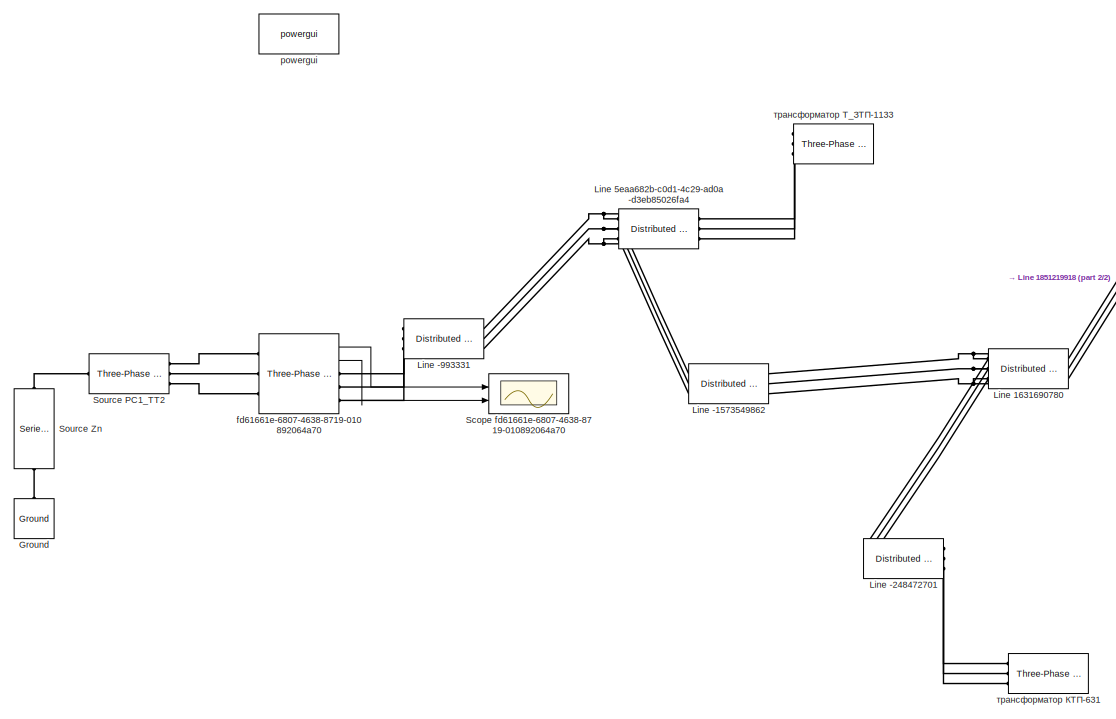
[diagram: root canvas - part 1/2, left side, full height]
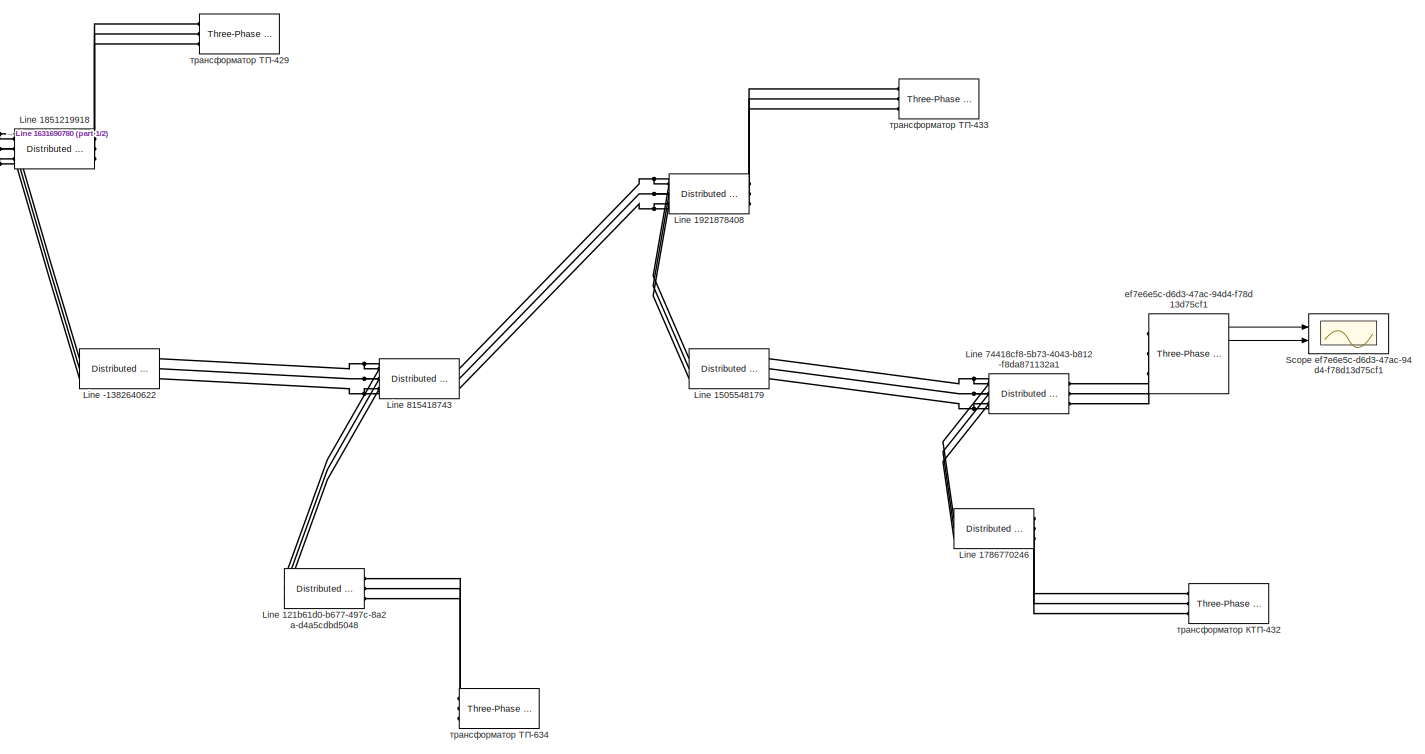
[diagram: root canvas - part 2/2, right side, full height]
MODEL slx_dfac7493e74a
KIND model
CONFIG AbsTol = auto
CONFIG EnableMultiTasking = off
CONFIG FixedStep = 0.2
CONFIG MaxStep = auto
CONFIG MinStep = auto
CONFIG RelTol = 1e-3
CONFIG SampleTimeConstraint = Unconstrained
CONFIG SolverName = FixedStepAuto
CONFIG StartTime = 0
CONFIG StopTime = 0.2
BLOCK [Reference] Ground  REF=spsGroundLib/Ground
  NameLocation = right
  Ports = [0, 0, 0, 0, 0, 1]
  SourceBlock = spsGroundLib/Ground
  SourceProductBaseCode = PS
  SourceType = Ground
BLOCK [Reference] Line -1382640622  REF=spsDistributedParametersLineLib/Distributed Parameters Line
  Description = Line connected to devices: [Опора-4/1_Л-8-10кВ_Воробьево\nОпора-2/44_Л-8-10кВ_Воробьево, Опора-2/67_Л-8-10кВ_Воробьево]
  Ports = [0, 0, 0, 0, 0, 3, 3]
  SourceBlock = spsDistributedParametersLineLib/Distributed Parameters Line
  SourceProductBaseCode = PS
  SourceType = Distributed Parameters Line
BLOCK [Reference] Line -1573549862  REF=spsDistributedParametersLineLib/Distributed Parameters Line
  Description = Line connected to devices: [СШ ЗТП-1133, Опора-3/1_Л-8-10кВ_Воробьево\nОпора-2/16_Л-8-10кВ_Воробьево]
  Ports = [0, 0, 0, 0, 0, 3, 3]
  SourceBlock = spsDistributedParametersLineLib/Distributed Parameters Line
  SourceProductBaseCode = PS
  SourceType = Distributed Parameters Line
BLOCK [Reference] Line -248472701  REF=spsDistributedParametersLineLib/Distributed Parameters Line
  Description = Line connected to devices: [Опора-3/1_Л-8-10кВ_Воробьево\nОпора-2/16_Л-8-10кВ_Воробьево, трансформатор КТП-631]
  Ports = [0, 0, 0, 0, 0, 3, 3]
  SourceBlock = spsDistributedParametersLineLib/Distributed Parameters Line
  SourceProductBaseCode = PS
  SourceType = Distributed Parameters Line
BLOCK [Reference] Line -993331  REF=spsDistributedParametersLineLib/Distributed Parameters Line
  Description = Line connected to devices: [ВВ Ячейка_Л-8-10кВ_Воробьево, СШ ЗТП-1133]
  Ports = [0, 0, 0, 0, 0, 3, 3]
  SourceBlock = spsDistributedParametersLineLib/Distributed Parameters Line
  SourceProductBaseCode = PS
  SourceType = Distributed Parameters Line
BLOCK [Reference] Line 121b61d0-b677-497c-8a2a-d4a5cdbd5048  REF=spsDistributedParametersLineLib/Distributed Parameters Line
  Description = Line connected to devices: [Опора-2/67_Л-8-10кВ_Воробьево, трансформатор ТП-634]
  Ports = [0, 0, 0, 0, 0, 3, 3]
  SourceBlock = spsDistributedParametersLineLib/Distributed Parameters Line
  SourceProductBaseCode = PS
  SourceType = Distributed Parameters Line
BLOCK [Reference] Line 1505548179  REF=spsDistributedParametersLineLib/Distributed Parameters Line
  Description = Line connected to devices: [Опора-5/11_Л-8-10кВ_Воробьево, Опора-5/22_Л-8-10кВ_Воробьево\nОпора-6/1_Л-8-10кВ_Воробьево]
  Ports = [0, 0, 0, 0, 0, 3, 3]
  SourceBlock = spsDistributedParametersLineLib/Distributed Parameters Line
  SourceProductBaseCode = PS
  SourceType = Distributed Parameters Line
BLOCK [Reference] Line 1631690780  REF=spsDistributedParametersLineLib/Distributed Parameters Line
  Description = Line connected to devices: [Опора-3/1_Л-8-10кВ_Воробьево\nОпора-2/16_Л-8-10кВ_Воробьево, Опора-4/1_Л-8-10кВ_Воробьево\nОпора-2/44_Л-8-10кВ_Воробьево]
  Ports = [0, 0, 0, 0, 0, 3, 3]
  SourceBlock = spsDistributedParametersLineLib/Distributed Parameters Line
  SourceProductBaseCode = PS
  SourceType = Distributed Parameters Line
BLOCK [Reference] Line 1786770246  REF=spsDistributedParametersLineLib/Distributed Parameters Line
  Description = Line connected to devices: [Опора-5/22_Л-8-10кВ_Воробьево\nОпора-6/1_Л-8-10кВ_Воробьево, трансформатор КТП-432]
  Ports = [0, 0, 0, 0, 0, 3, 3]
  SourceBlock = spsDistributedParametersLineLib/Distributed Parameters Line
  SourceProductBaseCode = PS
  SourceType = Distributed Parameters Line
BLOCK [Reference] Line 1851219918  REF=spsDistributedParametersLineLib/Distributed Parameters Line
  Description = Line connected to devices: [Опора-4/1_Л-8-10кВ_Воробьево\nОпора-2/44_Л-8-10кВ_Воробьево, трансформатор ТП-429]
  Ports = [0, 0, 0, 0, 0, 3, 3]
  SourceBlock = spsDistributedParametersLineLib/Distributed Parameters Line
  SourceProductBaseCode = PS
  SourceType = Distributed Parameters Line
BLOCK [Reference] Line 1921878408  REF=spsDistributedParametersLineLib/Distributed Parameters Line
  Description = Line connected to devices: [Опора-5/11_Л-8-10кВ_Воробьево, трансформатор ТП-433]
  Ports = [0, 0, 0, 0, 0, 3, 3]
  SourceBlock = spsDistributedParametersLineLib/Distributed Parameters Line
  SourceProductBaseCode = PS
  SourceType = Distributed Parameters Line
BLOCK [Reference] Line 5eaa682b-c0d1-4c29-ad0a-d3eb85026fa4  REF=spsDistributedParametersLineLib/Distributed Parameters Line
  Description = Line connected to devices: [СШ ЗТП-1133, трансформатор Т_ЗТП-1133]
  Ports = [0, 0, 0, 0, 0, 3, 3]
  SourceBlock = spsDistributedParametersLineLib/Distributed Parameters Line
  SourceProductBaseCode = PS
  SourceType = Distributed Parameters Line
BLOCK [Reference] Line 74418cf8-5b73-4043-b812-f8da871132a1  REF=spsDistributedParametersLineLib/Distributed Parameters Line
  Description = Line connected to devices: [Опора-5/22_Л-8-10кВ_Воробьево\nОпора-6/1_Л-8-10кВ_Воробьево, ВВ РВА-9-10кВ]
  Ports = [0, 0, 0, 0, 0, 3, 3]
  SourceBlock = spsDistributedParametersLineLib/Distributed Parameters Line
  SourceProductBaseCode = PS
  SourceType = Distributed Parameters Line
BLOCK [Reference] Line 815418743  REF=spsDistributedParametersLineLib/Distributed Parameters Line
  Description = Line connected to devices: [Опора-2/67_Л-8-10кВ_Воробьево, Опора-5/11_Л-8-10кВ_Воробьево]
  Ports = [0, 0, 0, 0, 0, 3, 3]
  SourceBlock = spsDistributedParametersLineLib/Distributed Parameters Line
  SourceProductBaseCode = PS
  SourceType = Distributed Parameters Line
BLOCK [Scope] Scope ef7e6e5c-d6d3-47ac-94d4-f78d13d75cf1
  Floating = off
  NumInputPorts = 2
  Ports = [2]
  ScopeSpecificationString = Simulink.scopes.TimeScopeBlockCfg('CurrentConfiguration', extmgr.ConfigurationSet(extmgr.Configuration('Core','General UI',true),extmgr.Configuration('Core','Source UI',true),extmgr.Configuration('Sources','WiredSimulink',true,'DataLogging',true,'DataLoggingSaveFormat','StructureWithTime','DataLoggingVariableName','ScopeData18'),extmgr.Configuration('Visuals','Time Domain',true,'SerializedDisplays...<+1381ch>
BLOCK [Scope] Scope fd61661e-6807-4638-8719-010892064a70
  Floating = off
  NumInputPorts = 2
  Ports = [2]
  ScopeSpecificationString = Simulink.scopes.TimeScopeBlockCfg('CurrentConfiguration', extmgr.ConfigurationSet(extmgr.Configuration('Core','General UI',true),extmgr.Configuration('Core','Source UI',true),extmgr.Configuration('Sources','WiredSimulink',true,'DataLogging',true,'DataLoggingSaveFormat','StructureWithTime','DataLoggingVariableName','ScopeData3'),extmgr.Configuration('Visuals','Time Domain',true,'SerializedDisplays'...<+2120ch>
BLOCK [Reference] Source PC1_TT2  REF=spsThreePhaseSourceLib/Three-Phase Source
  Ports = [0, 0, 0, 0, 0, 1, 3]
  SourceBlock = spsThreePhaseSourceLib/Three-Phase Source
  SourceProductBaseCode = PS
  SourceType = Three-Phase Source
BLOCK [Reference] Source Zn  REF=spsSeriesRLCBranchLib/Series RLC Branch
  NameLocation = right
  Ports = [0, 0, 0, 0, 0, 1, 1]
  SourceBlock = spsSeriesRLCBranchLib/Series RLC Branch
  SourceProductBaseCode = PS
  SourceType = Series RLC Branch
BLOCK [Reference] ef7e6e5c-d6d3-47ac-94d4-f78d13d75cf1  REF=spsThreePhaseVIMeasurementLib/Three-Phase
V-I Measurement
  Ports = [0, 2, 0, 0, 0, 3, 3]
  SourceBlock = spsThreePhaseVIMeasurementLib/Three-Phase\nV-I Measurement
  SourceProductBaseCode = PS
  SourceType = Three-Phase VI Measurement
BLOCK [Reference] fd61661e-6807-4638-8719-010892064a70  REF=spsThreePhaseVIMeasurementLib/Three-Phase
V-I Measurement
  Ports = [0, 2, 0, 0, 0, 3, 3]
  SourceBlock = spsThreePhaseVIMeasurementLib/Three-Phase\nV-I Measurement
  SourceProductBaseCode = PS
  SourceType = Three-Phase VI Measurement
BLOCK [Reference] powergui  REF=spspowerguiLib/powergui
  Ports = []
  Priority = 1
  SourceBlock = spspowerguiLib/powergui
  SourceProductBaseCode = PS
  SourceType = PSB option menu block
BLOCK [Reference] трансформатор КТП-432  REF=spsThreePhaseSeriesRLCLoadLib/Three-Phase
Series RLC Load
  AttributesFormatString = \n
  Description = Device type: [LOAD], in DispatcherName: [трансформатор КТП-432]
  NameLocation = top
  Ports = [0, 0, 0, 0, 0, 3]
  SourceBlock = spsThreePhaseSeriesRLCLoadLib/Three-Phase\nSeries RLC Load
  SourceProductBaseCode = PS
  SourceType = Three-Phase Series RLC Load
BLOCK [Reference] трансформатор КТП-631  REF=spsThreePhaseSeriesRLCLoadLib/Three-Phase
Series RLC Load
  AttributesFormatString = \n
  Description = Device type: [LOAD], in DispatcherName: [трансформатор КТП-631]
  NameLocation = top
  Ports = [0, 0, 0, 0, 0, 3]
  SourceBlock = spsThreePhaseSeriesRLCLoadLib/Three-Phase\nSeries RLC Load
  SourceProductBaseCode = PS
  SourceType = Three-Phase Series RLC Load
BLOCK [Reference] трансформатор Т_ЗТП-1133  REF=spsThreePhaseSeriesRLCLoadLib/Three-Phase
Series RLC Load
  AttributesFormatString = \n
  Description = Device type: [LOAD], in DispatcherName: [трансформатор Т_ЗТП-1133]
  NameLocation = top
  Ports = [0, 0, 0, 0, 0, 3]
  SourceBlock = spsThreePhaseSeriesRLCLoadLib/Three-Phase\nSeries RLC Load
  SourceProductBaseCode = PS
  SourceType = Three-Phase Series RLC Load
BLOCK [Reference] трансформатор ТП-429  REF=spsThreePhaseSeriesRLCLoadLib/Three-Phase
Series RLC Load
  AttributesFormatString = \n
  Description = Device type: [LOAD], in DispatcherName: [трансформатор ТП-429]
  NameLocation = top
  Ports = [0, 0, 0, 0, 0, 3]
  SourceBlock = spsThreePhaseSeriesRLCLoadLib/Three-Phase\nSeries RLC Load
  SourceProductBaseCode = PS
  SourceType = Three-Phase Series RLC Load
BLOCK [Reference] трансформатор ТП-433  REF=spsThreePhaseSeriesRLCLoadLib/Three-Phase
Series RLC Load
  AttributesFormatString = \n
  Description = Device type: [LOAD], in DispatcherName: [трансформатор ТП-433]
  NameLocation = top
  Ports = [0, 0, 0, 0, 0, 3]
  SourceBlock = spsThreePhaseSeriesRLCLoadLib/Three-Phase\nSeries RLC Load
  SourceProductBaseCode = PS
  SourceType = Three-Phase Series RLC Load
BLOCK [Reference] трансформатор ТП-634  REF=spsThreePhaseSeriesRLCLoadLib/Three-Phase
Series RLC Load
  AttributesFormatString = \n
  Description = Device type: [LOAD], in DispatcherName: [трансформатор ТП-634]
  NameLocation = top
  Ports = [0, 0, 0, 0, 0, 3]
  SourceBlock = spsThreePhaseSeriesRLCLoadLib/Three-Phase\nSeries RLC Load
  SourceProductBaseCode = PS
  SourceType = Three-Phase Series RLC Load
LINE ef7e6e5c-d6d3-47ac-94d4-f78d13d75cf1:1 -> Scope ef7e6e5c-d6d3-47ac-94d4-f78d13d75cf1:1
LINE ef7e6e5c-d6d3-47ac-94d4-f78d13d75cf1:2 -> Scope ef7e6e5c-d6d3-47ac-94d4-f78d13d75cf1:2
LINE fd61661e-6807-4638-8719-010892064a70:1 -> Scope fd61661e-6807-4638-8719-010892064a70:1
LINE fd61661e-6807-4638-8719-010892064a70:2 -> Scope fd61661e-6807-4638-8719-010892064a70:2
PLINE Ground:LConn1 -- Source Zn:LConn1
PNET net1: Line -1382640622:LConn1 -- Line 1631690780:RConn1 -- Line 1851219918:LConn1
PNET net2: Line -1382640622:LConn2 -- Line 1631690780:RConn2 -- Line 1851219918:LConn2
PNET net3: Line -1382640622:LConn3 -- Line 1631690780:RConn3 -- Line 1851219918:LConn3
PNET net4: Line -1382640622:RConn1 -- Line 121b61d0-b677-497c-8a2a-d4a5cdbd5048:LConn1 -- Line 815418743:LConn1
PNET net5: Line -1382640622:RConn2 -- Line 121b61d0-b677-497c-8a2a-d4a5cdbd5048:LConn2 -- Line 815418743:LConn2
PNET net6: Line -1382640622:RConn3 -- Line 121b61d0-b677-497c-8a2a-d4a5cdbd5048:LConn3 -- Line 815418743:LConn3
PNET net7: Line -1573549862:LConn1 -- Line -993331:RConn1 -- Line 5eaa682b-c0d1-4c29-ad0a-d3eb85026fa4:LConn1
PNET net8: Line -1573549862:LConn2 -- Line -993331:RConn2 -- Line 5eaa682b-c0d1-4c29-ad0a-d3eb85026fa4:LConn2
PNET net9: Line -1573549862:LConn3 -- Line -993331:RConn3 -- Line 5eaa682b-c0d1-4c29-ad0a-d3eb85026fa4:LConn3
PNET net10: Line -1573549862:RConn1 -- Line -248472701:LConn1 -- Line 1631690780:LConn1
PNET net11: Line -1573549862:RConn2 -- Line -248472701:LConn2 -- Line 1631690780:LConn2
PNET net12: Line -1573549862:RConn3 -- Line -248472701:LConn3 -- Line 1631690780:LConn3
PLINE Line -248472701:RConn1 -- трансформатор КТП-631:LConn1
PLINE Line -248472701:RConn2 -- трансформатор КТП-631:LConn2
PLINE Line -248472701:RConn3 -- трансформатор КТП-631:LConn3
PLINE Line -993331:LConn1 -- fd61661e-6807-4638-8719-010892064a70:RConn1
PLINE Line -993331:LConn2 -- fd61661e-6807-4638-8719-010892064a70:RConn2
PLINE Line -993331:LConn3 -- fd61661e-6807-4638-8719-010892064a70:RConn3
PLINE Line 121b61d0-b677-497c-8a2a-d4a5cdbd5048:RConn1 -- трансформатор ТП-634:LConn1
PLINE Line 121b61d0-b677-497c-8a2a-d4a5cdbd5048:RConn2 -- трансформатор ТП-634:LConn2
PLINE Line 121b61d0-b677-497c-8a2a-d4a5cdbd5048:RConn3 -- трансформатор ТП-634:LConn3
PNET net13: Line 1505548179:LConn1 -- Line 1921878408:LConn1 -- Line 815418743:RConn1
PNET net14: Line 1505548179:LConn2 -- Line 1921878408:LConn2 -- Line 815418743:RConn2
PNET net15: Line 1505548179:LConn3 -- Line 1921878408:LConn3 -- Line 815418743:RConn3
PNET net16: Line 1505548179:RConn1 -- Line 1786770246:LConn1 -- Line 74418cf8-5b73-4043-b812-f8da871132a1:LConn1
PNET net17: Line 1505548179:RConn2 -- Line 1786770246:LConn2 -- Line 74418cf8-5b73-4043-b812-f8da871132a1:LConn2
PNET net18: Line 1505548179:RConn3 -- Line 1786770246:LConn3 -- Line 74418cf8-5b73-4043-b812-f8da871132a1:LConn3
PLINE Line 1786770246:RConn1 -- трансформатор КТП-432:LConn1
PLINE Line 1786770246:RConn2 -- трансформатор КТП-432:LConn2
PLINE Line 1786770246:RConn3 -- трансформатор КТП-432:LConn3
PLINE Line 1851219918:RConn1 -- трансформатор ТП-429:LConn1
PLINE Line 1851219918:RConn2 -- трансформатор ТП-429:LConn2
PLINE Line 1851219918:RConn3 -- трансформатор ТП-429:LConn3
PLINE Line 1921878408:RConn1 -- трансформатор ТП-433:LConn1
PLINE Line 1921878408:RConn2 -- трансформатор ТП-433:LConn2
PLINE Line 1921878408:RConn3 -- трансформатор ТП-433:LConn3
PLINE Line 5eaa682b-c0d1-4c29-ad0a-d3eb85026fa4:RConn1 -- трансформатор Т_ЗТП-1133:LConn1
PLINE Line 5eaa682b-c0d1-4c29-ad0a-d3eb85026fa4:RConn2 -- трансформатор Т_ЗТП-1133:LConn2
PLINE Line 5eaa682b-c0d1-4c29-ad0a-d3eb85026fa4:RConn3 -- трансформатор Т_ЗТП-1133:LConn3
PLINE Line 74418cf8-5b73-4043-b812-f8da871132a1:RConn1 -- ef7e6e5c-d6d3-47ac-94d4-f78d13d75cf1:LConn1
PLINE Line 74418cf8-5b73-4043-b812-f8da871132a1:RConn2 -- ef7e6e5c-d6d3-47ac-94d4-f78d13d75cf1:LConn2
PLINE Line 74418cf8-5b73-4043-b812-f8da871132a1:RConn3 -- ef7e6e5c-d6d3-47ac-94d4-f78d13d75cf1:LConn3
PLINE Source PC1_TT2:LConn1 -- Source Zn:RConn1
PLINE Source PC1_TT2:RConn1 -- fd61661e-6807-4638-8719-010892064a70:LConn1
PLINE Source PC1_TT2:RConn2 -- fd61661e-6807-4638-8719-010892064a70:LConn2
PLINE Source PC1_TT2:RConn3 -- fd61661e-6807-4638-8719-010892064a70:LConn3
note: PNET lines group multi-terminal physical nets as a canonical sorted terminal list (undirected conserving connections); 2-terminal nets keep the pairwise PLINE form
